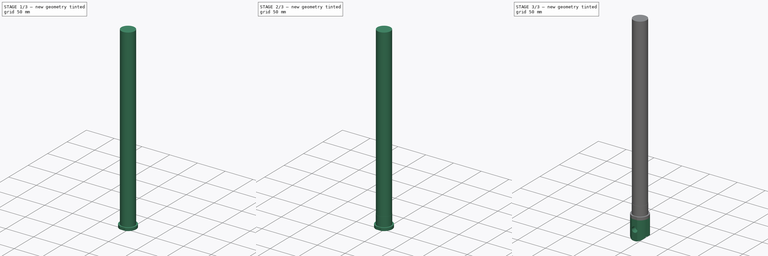
[diagram: build sequence overview — one tinted view per stage of 3, left to right]
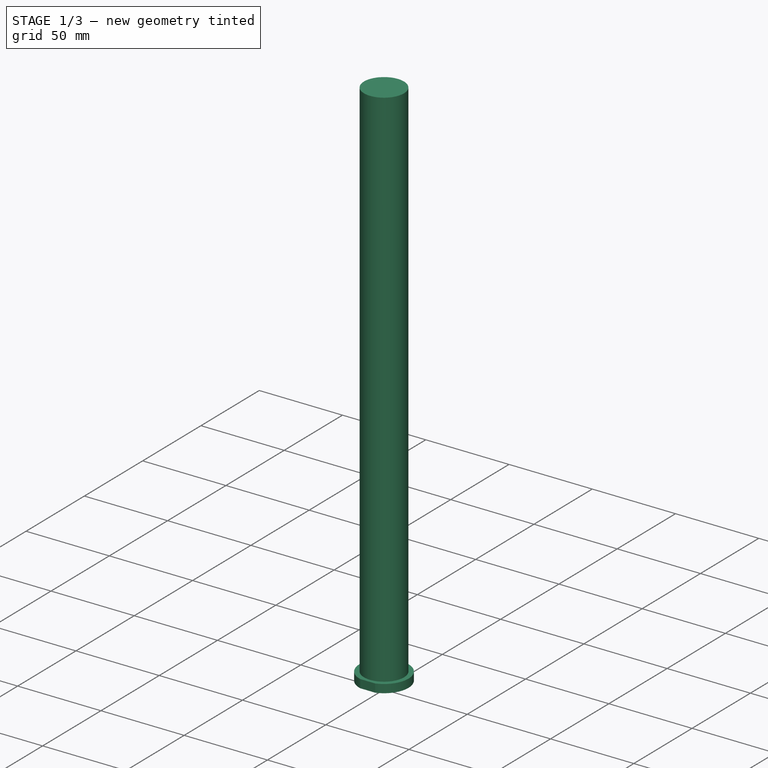
[diagram: stage 1 of 3 — iso view after this stage's code; geometry added in this stage tinted green]
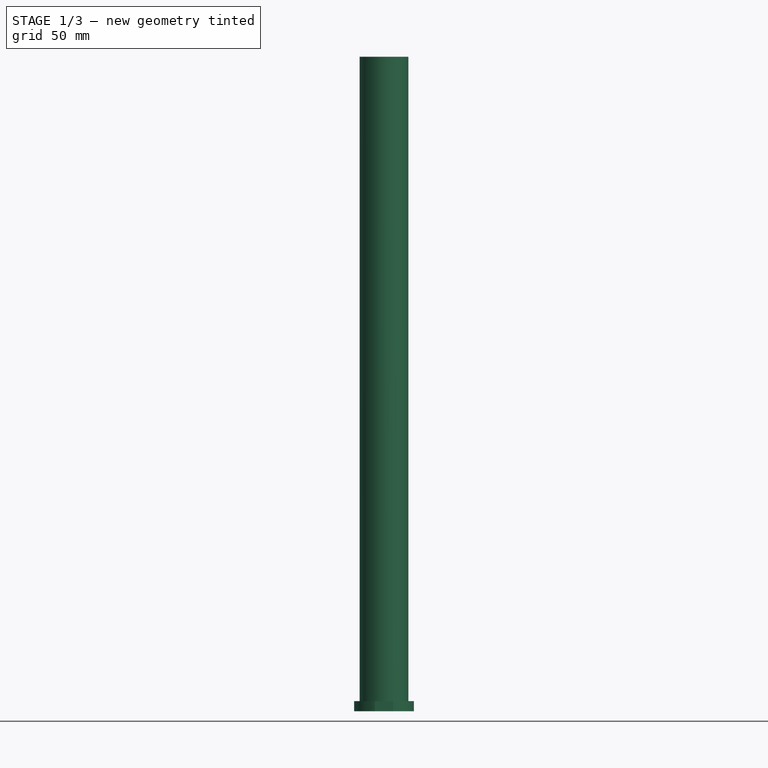
[diagram: stage 1 of 3 — front view after this stage's code; geometry added in this stage tinted green]
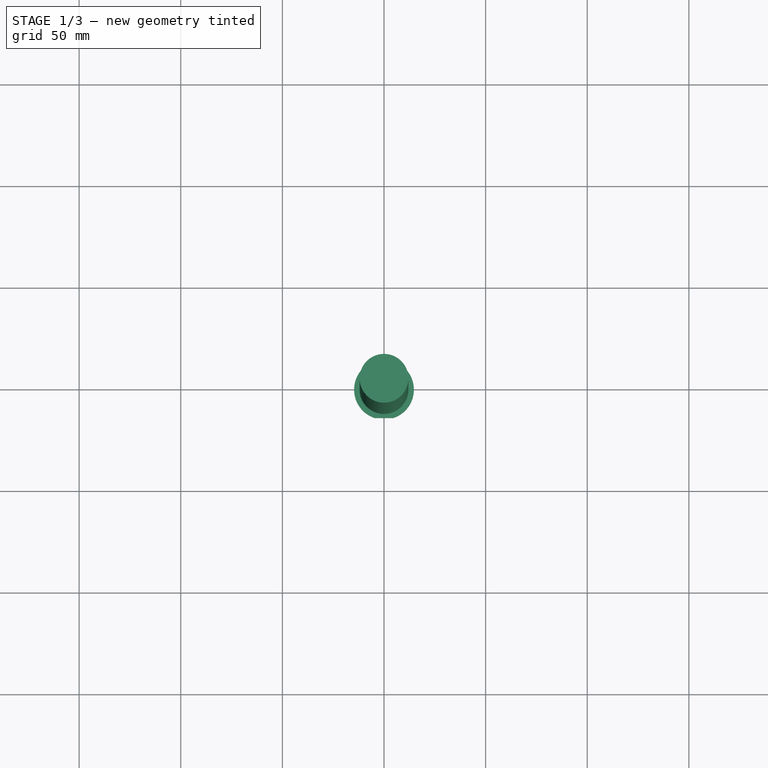
[diagram: stage 1 of 3 — top view after this stage's code; geometry added in this stage tinted green]
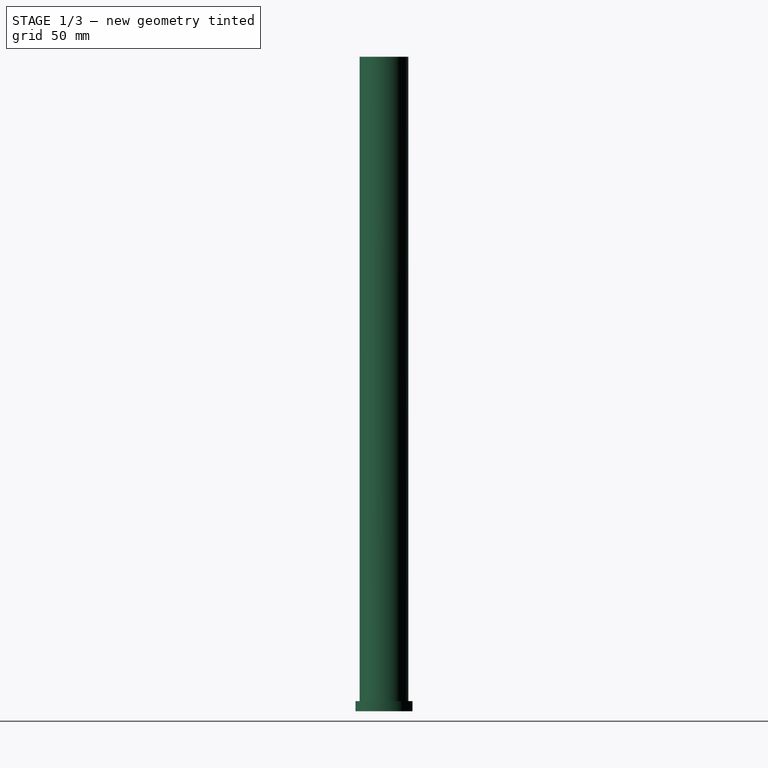
[diagram: stage 1 of 3 — right view after this stage's code; geometry added in this stage tinted green]
FCSTD DOCUMENT  (FreeCAD 0.19R24366 (Git))
Label: Actuator rod
License: All rights reserved
LicenseURL: http://en.wikipedia.org/wiki/All_rights_reserved
objects: Sketcher::SketchObject×5, PartDesign::Pad×4, PartDesign::Pocket×1, PartDesign::Body×1
note: 16 computed .brp shape members not serialized (recipe doc carries the construction recipe); baked Part::Feature solids carry a one-line shape summary decoded from their .brp

FEATURE [Sketcher::SketchObject] Sketch  label="Actuator shaft sketch"
  FullyConstrained = true
  MapMode = 5
  Support = -> [XY_Plane]
  sketch-geometry (1):
    g0: Circle CenterX=0 CenterY=0 CenterZ=0 NormalX=0 NormalY=0 NormalZ=1 AngleXU=0 Radius=12
  constraints (2):
    c: Coincident(g0,g-1)
    c: Radius(g0) = 12
FEATURE [PartDesign::Pad] Pad  label="Actuator shaft"
  Direction = (1,1,1)
  Length = 317
  Length2 = 100
  Profile = -> Sketch
  Type = 0
FEATURE [Sketcher::SketchObject] Sketch001  label="End plate sketch FILED TO 28mm WIDE"
  FullyConstrained = true
  MapMode = 5
  Support = -> [XY_Plane]
  sketch-geometry (4):
    g0: ArcOfCircle CenterX=0 CenterY=0 CenterZ=0 NormalX=0 NormalY=0 NormalZ=1 AngleXU=0 Radius=14.7 StartAngle=1.88064 EndAngle=4.40254
    g1: LineSegment StartX=-4.48219 StartY=14 StartZ=0 EndX=4.48219 EndY=14 EndZ=0
    g2: LineSegment StartX=-4.48219 StartY=-14 StartZ=0 EndX=4.48219 EndY=-14 EndZ=0
    g3: ArcOfCircle CenterX=0 CenterY=0 CenterZ=0 NormalX=0 NormalY=0 NormalZ=1 AngleXU=0 Radius=14.7 StartAngle=5.02223 EndAngle=7.54414
  constraints (12):
    c: Coincident(g0,g-1)
    c: Radius(g0) = 14.7
    c: Horizontal(g2)
    c: Horizontal(g1)
    c: Equal(g1,g2)
    c: DistanceY(g2,g1) = 28
    c: Coincident(g0,g1)
    c: Coincident(g3,g1)
    c: Equal(g0,g3)
    c: Coincident(g0,g2)
    c: Coincident(g3,g2)
    c: Coincident(g0,g3)
FEATURE [PartDesign::Pad] Pad001  label="End plate thickness"
  BaseFeature = -> Pad
  Direction = (1,1,1)
  Length = 5
  Length2 = 100
  Profile = -> Sketch001
  Reversed = true
  Type = 0
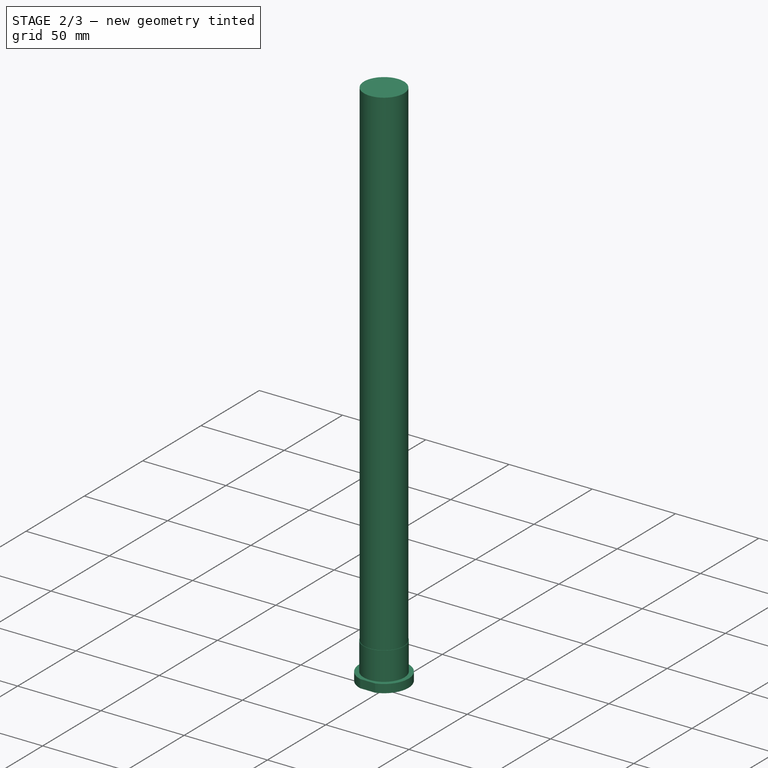
[diagram: stage 2 of 3 — iso view after this stage's code; geometry added in this stage tinted green]
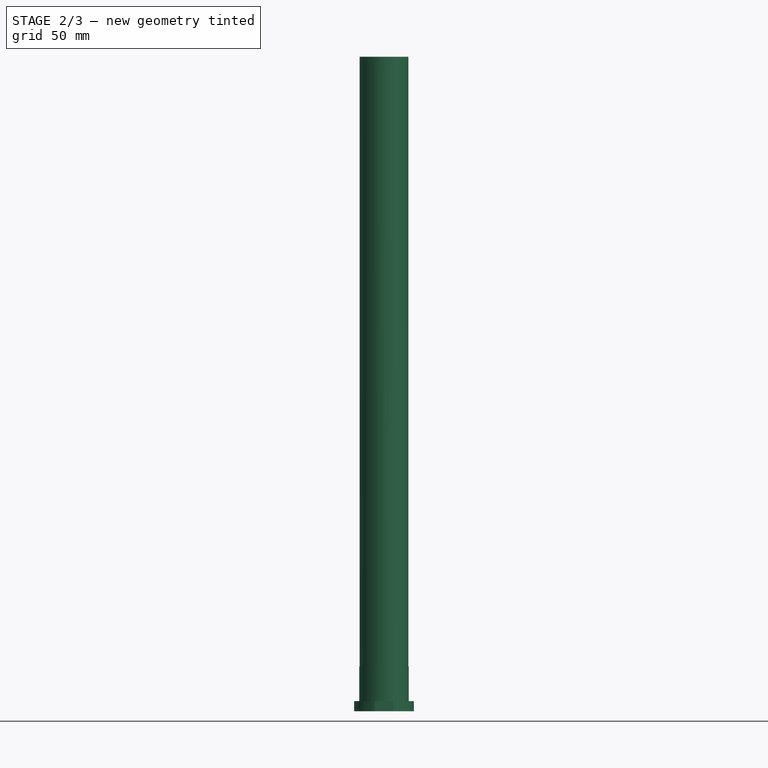
[diagram: stage 2 of 3 — front view after this stage's code; geometry added in this stage tinted green]
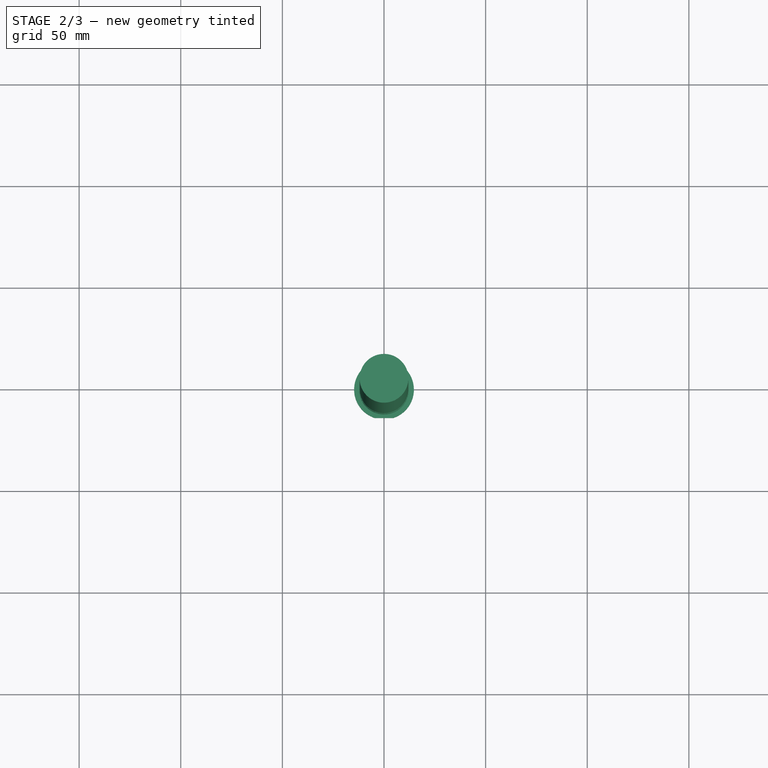
[diagram: stage 2 of 3 — top view after this stage's code; geometry added in this stage tinted green]
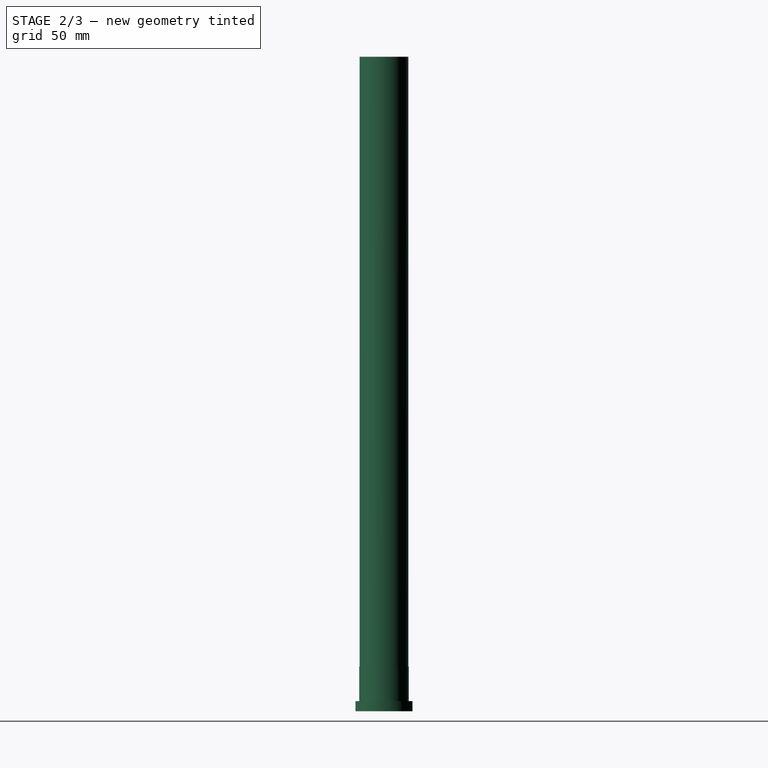
[diagram: stage 2 of 3 — right view after this stage's code; geometry added in this stage tinted green]
FEATURE [Sketcher::SketchObject] Sketch004  label="Min extension marker ring sketch"
  ExternalGeometry = -> [Pad]
  FullyConstrained = true
  MapMode = 5
  Placement = pos=(0,0,0) rot=(1,0,0;3.14159rad)
  Support = -> [Pad]
  sketch-geometry (3):
    g0: Circle CenterX=0 CenterY=0 CenterZ=0 NormalX=0 NormalY=0 NormalZ=1 AngleXU=0 Radius=12.2
    g1: GeomPoint X=12 Y=0 Z=0
    g2: GeomPoint X=12.2 Y=0 Z=0
  constraints (6):
    c: Coincident(g0,g-1)
    c: PointOnObject(g1,g-3)
    c: PointOnObject(g2,g0)
    c: PointOnObject(g1,g-1)
    c: PointOnObject(g2,g-1)
    c: DistanceX(g1,g2) = 0.2
FEATURE [PartDesign::Pad] Pad003  label="Min extension marker ring"
  BaseFeature = -> Pad001
  Direction = (1,1,1)
  Length = 17
  Length2 = 100
  Profile = -> Sketch004
  Reversed = true
  Type = 0
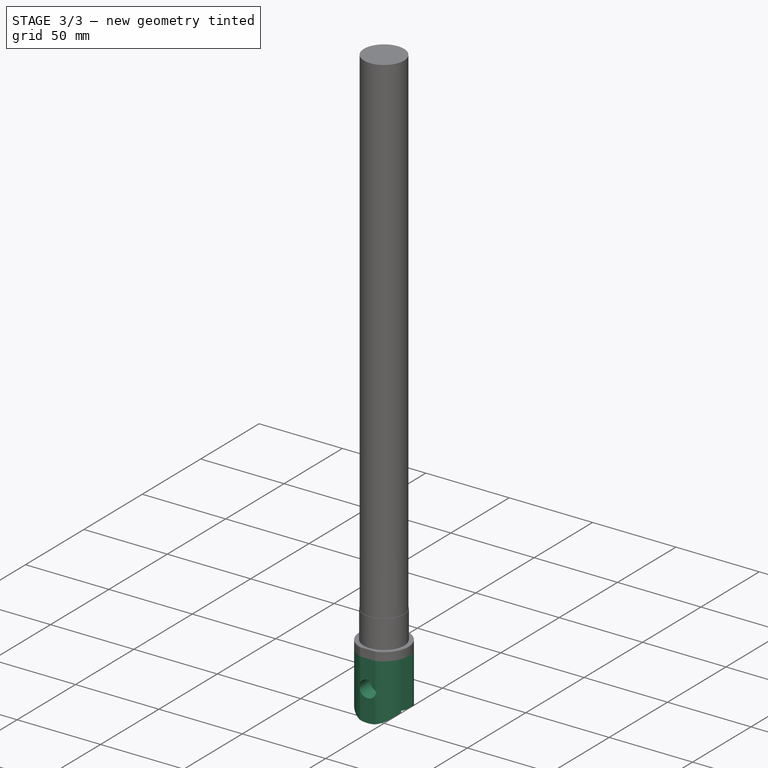
[diagram: stage 3 of 3 — iso view after this stage's code; geometry added in this stage tinted green]
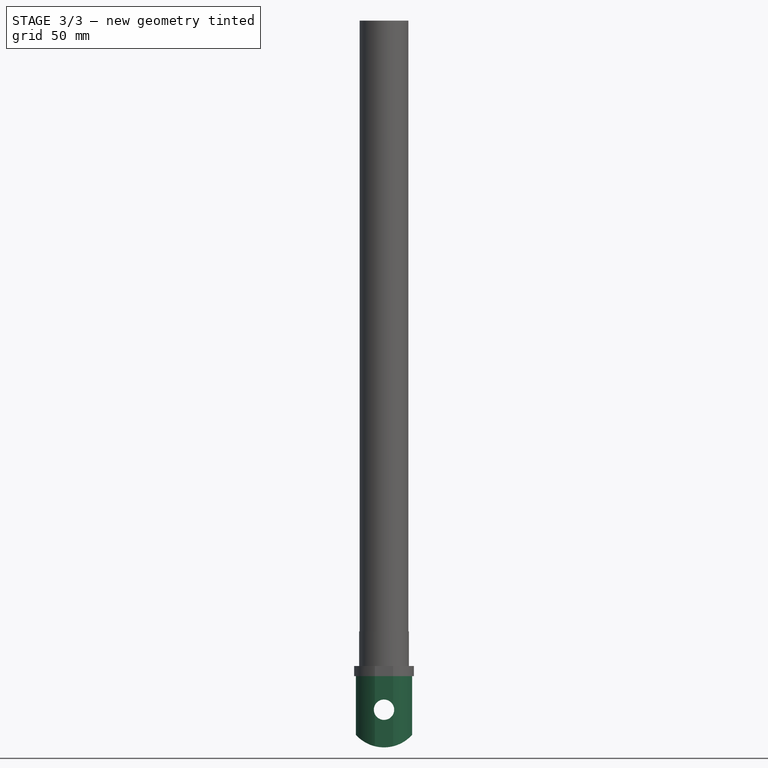
[diagram: stage 3 of 3 — front view after this stage's code; geometry added in this stage tinted green]
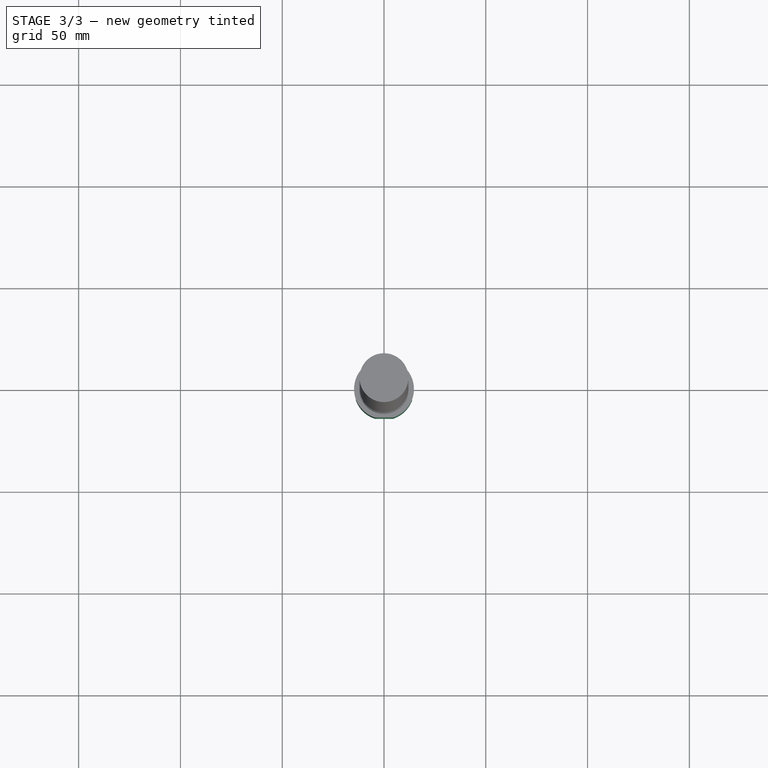
[diagram: stage 3 of 3 — top view after this stage's code; geometry added in this stage tinted green]
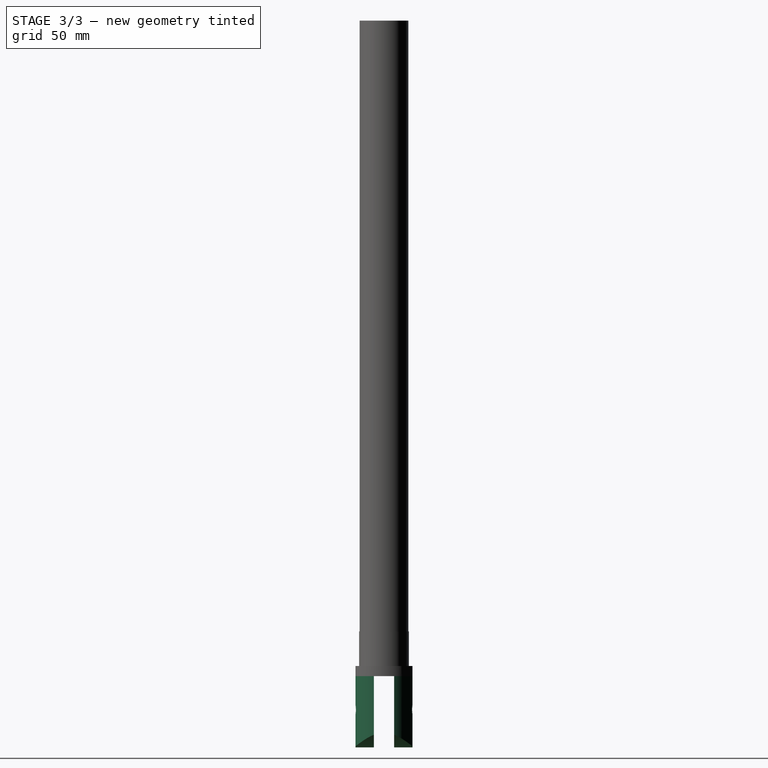
[diagram: stage 3 of 3 — right view after this stage's code; geometry added in this stage tinted green]
FEATURE [Sketcher::SketchObject] Sketch005  label="End forks sketch FILED TO 28mm WIDE"
  FullyConstrained = true
  MapMode = 5
  Placement = pos=(0,0,-5) rot=(1,0,0;3.14159rad)
  Support = -> [Pad003]
  sketch-geometry (8):
    g0: ArcOfCircle CenterX=0 CenterY=0 CenterZ=0 NormalX=0 NormalY=0 NormalZ=1 AngleXU=0 Radius=14.7 StartAngle=1.88064 EndAngle=2.79453
    g1: LineSegment StartX=-13.8235 StartY=5 StartZ=0 EndX=13.8235 EndY=5 EndZ=0
    g2: LineSegment StartX=-13.8235 StartY=-5 StartZ=0 EndX=13.8235 EndY=-5 EndZ=0
    g3: LineSegment StartX=4.48219 StartY=-14 StartZ=0 EndX=-4.48219 EndY=-14 EndZ=0
    g4: LineSegment StartX=-4.48219 StartY=14 StartZ=0 EndX=4.48219 EndY=14 EndZ=0
    g5: ArcOfCircle CenterX=0 CenterY=0 CenterZ=0 NormalX=0 NormalY=0 NormalZ=1 AngleXU=0 Radius=14.7 StartAngle=5.02223 EndAngle=5.93612
    g6: ArcOfCircle CenterX=0 CenterY=0 CenterZ=0 NormalX=0 NormalY=0 NormalZ=1 AngleXU=0 Radius=14.7 StartAngle=3.48865 EndAngle=4.40254
    g7: ArcOfCircle CenterX=0 CenterY=0 CenterZ=0 NormalX=0 NormalY=0 NormalZ=1 AngleXU=0 Radius=14.7 StartAngle=0.347062 EndAngle=1.26095
  constraints (24):
    c: Coincident(g0,g-1)
    c: Radius(g0) = 14.7
    c: PointOnObject(g1,g0)
    c: Horizontal(g4)
    c: Horizontal(g1)
    c: Horizontal(g2)
    c: Horizontal(g3)
    c: Symmetric(g4,g3,g-1)
    c: Symmetric(g1,g2,g-1)
    c: DistanceY(g3,g4) = 28
    c: DistanceY(g2,g1) = 10
    c: Coincident(g0,g4)
    c: Coincident(g7,g4)
    c: Equal(g0,g5)
    c: Coincident(g6,g3)
    c: Coincident(g5,g3)
    c: Coincident(g0,g5)
    c: Equal(g0,g6)
    c: Coincident(g0,g1)
    c: Coincident(g6,g2)
    c: Coincident(g0,g6)
    c: PointOnObject(g5,g2)
    c: PointOnObject(g7,g1)
    c: Coincident(g5,g7)
FEATURE [PartDesign::Pad] Pad004  label="End forks length approx"
  BaseFeature = -> Pad003
  Direction = (1,1,1)
  Length = 36
  Length2 = 100
  Profile = -> Sketch005
  Type = 0
FEATURE [Sketcher::SketchObject] Sketch006  label="End hole and curve sketch TWEAKED HOLE POSITON"
  FullyConstrained = true
  MapMode = 5
  Placement = pos=(0,14,0) rot=(0,0.707107,0.707107;3.14159rad)
  Support = -> [Pad004]
  sketch-geometry (6):
    g0: Circle CenterX=0 CenterY=-21.5 CenterZ=0 NormalX=0 NormalY=0 NormalZ=1 AngleXU=0 Radius=5
    g1: ArcOfCircle CenterX=0 CenterY=-21.5 CenterZ=0 NormalX=0 NormalY=0 NormalZ=1 AngleXU=0 Radius=18.5 StartAngle=3.14159 EndAngle=6.28319
    g2: GeomPoint X=0 Y=-40 Z=0
    g3: LineSegment StartX=-18.5 StartY=-21.5 StartZ=0 EndX=-18.5 EndY=-43 EndZ=0
    g4: LineSegment StartX=18.5 StartY=-21.5 StartZ=0 EndX=18.5 EndY=-43 EndZ=0
    g5: LineSegment StartX=-18.5 StartY=-43 StartZ=0 EndX=18.5 EndY=-43 EndZ=0
  constraints (15):
    c: PointOnObject(g0,g-2)
    c: Coincident(g1,g0)
    c: DistanceY(g0,g-1) = 21.5
    c: Radius(g0) = 5
    c: PointOnObject(g2,g1)
    c: PointOnObject(g2,g-2)
    c: DistanceY(g2,g-1) = 40
    c: Coincident(g5,g3)
    c: Coincident(g5,g4)
    c: Horizontal(g5)
    c: Vertical(g3)
    c: Vertical(g4)
    c: Tangent(g1,g4) = 1.5708
    c: Tangent(g1,g3) = -1.5708
    c: DistanceY(g3,g2) = 3
FEATURE [PartDesign::Pocket] Pocket  label="End hole and curve"
  BaseFeature = -> Pad004
  Length = 5
  Length2 = 100
  Profile = -> Sketch006
  Type = 1
FEATURE [PartDesign::Body] Body
  Group = -> [Sketch,Pad,Sketch001,Pad001,Sketch004,Pad003,Sketch005,Pad004,Sketch006,Pocket]
  Origin = -> Origin
  Tip = -> Pocket
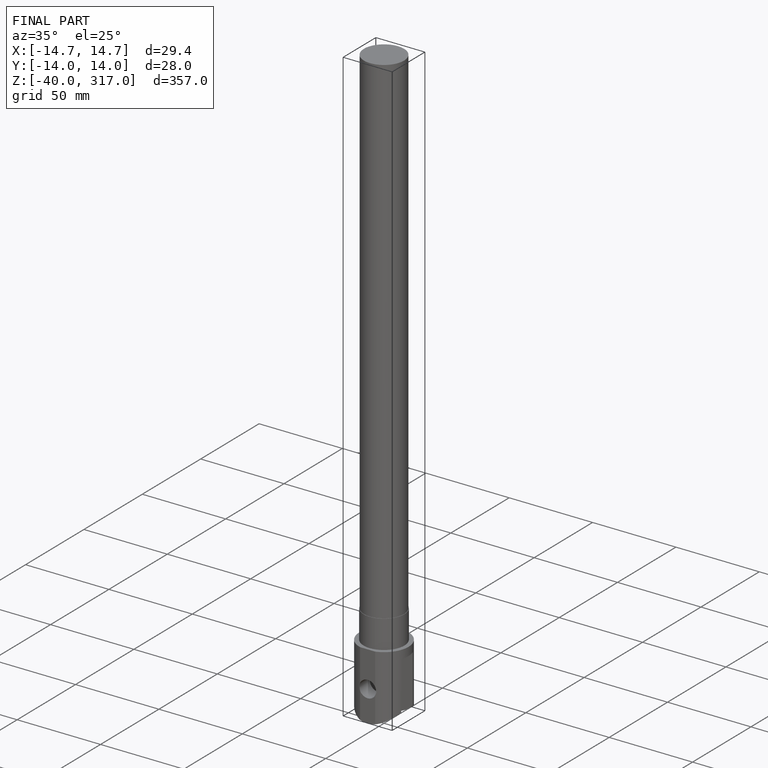
[diagram: finished part — iso view with bounding-box wireframe]
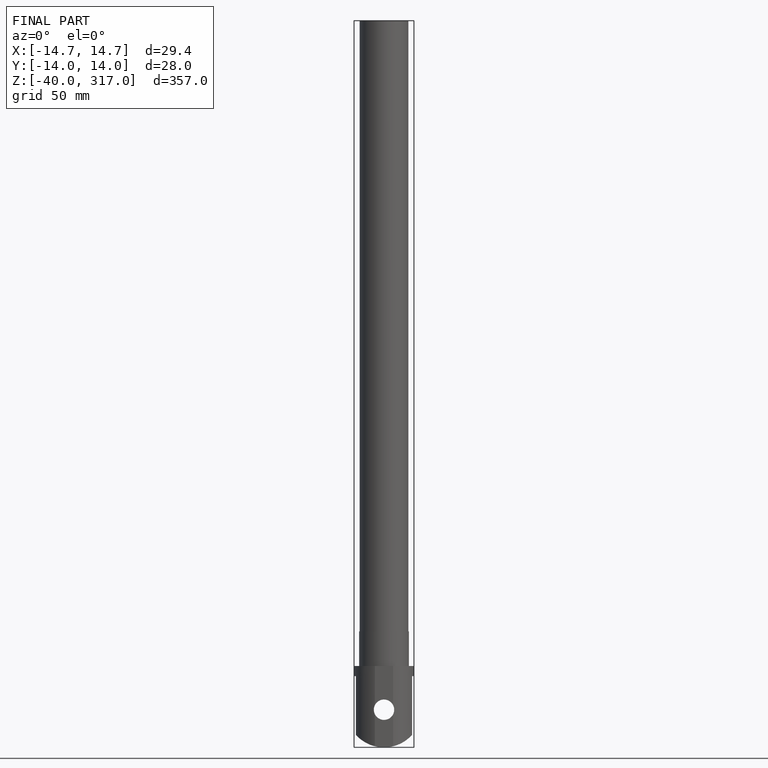
[diagram: finished part — front view with bounding-box wireframe]
